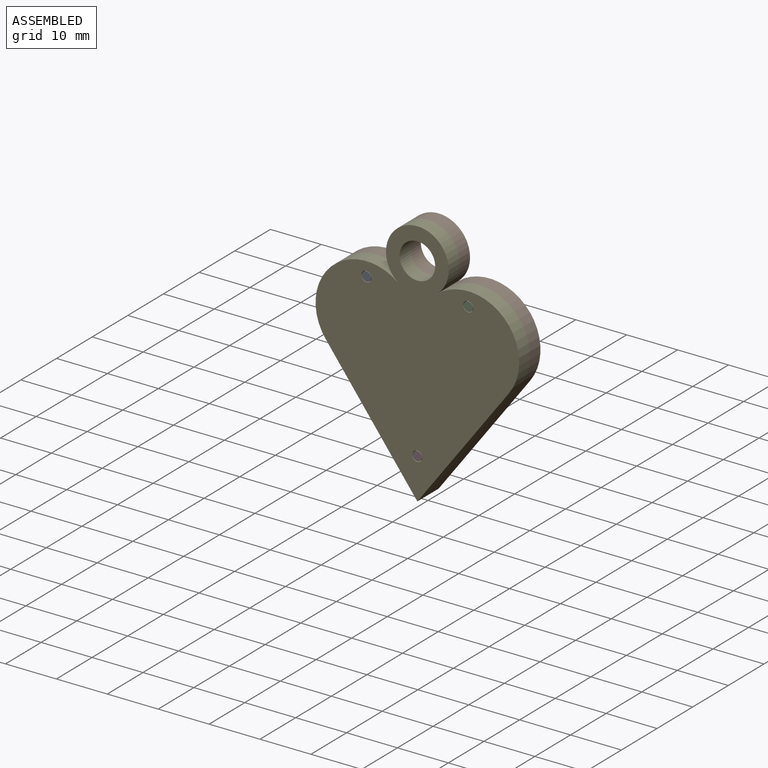
[diagram: assembled view]
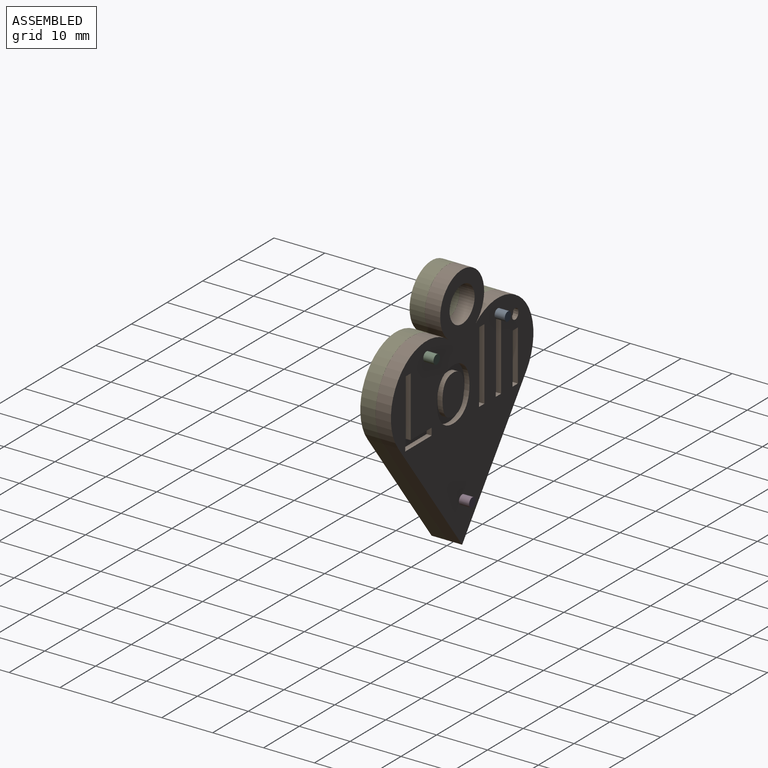
[diagram: assembled view, second angle]
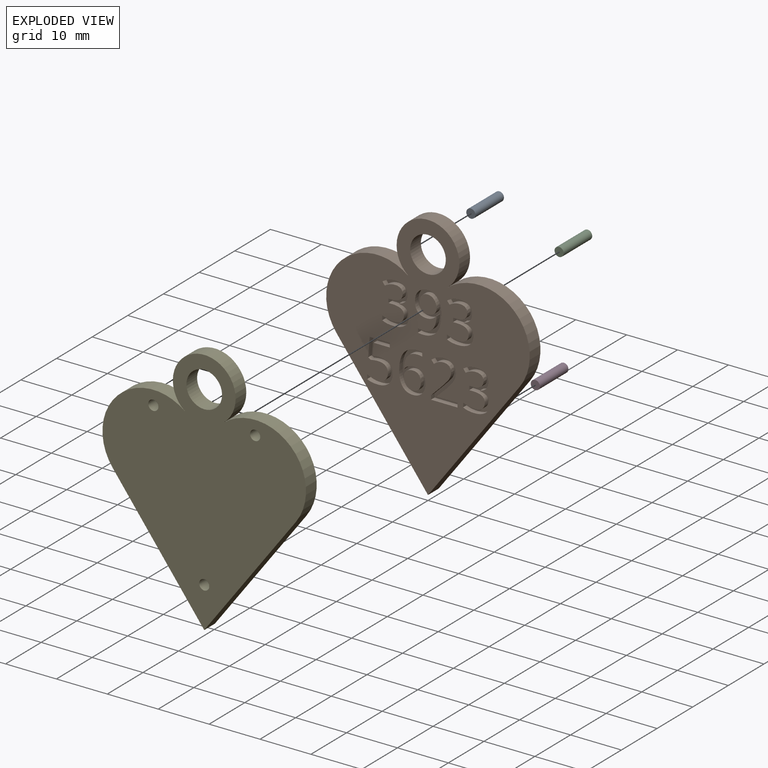
[diagram: exploded view]
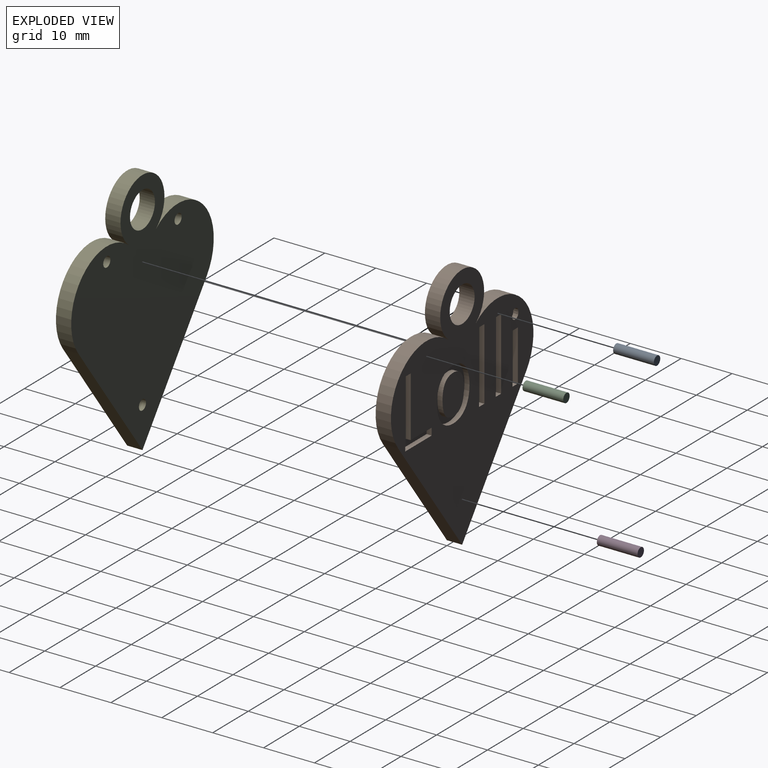
[diagram: exploded view, second angle]
ASSEMBLY  parts=5 mates=4
PART A: 3 faces, bbox 1.8x8x1.8 mm
  f0: cylinder r=0.9mm len=8mm, axis (0,1,0), area 45.2mm2, adj f1,f2
  f1: plane 1.8x1.8mm, normal (0,-1,0), area 2.5mm2, adj f0
  f2: plane 1.8x1.8mm, normal (0,1,0), area 2.5mm2, adj f0
PART B: 241 faces, bbox 40x3x48.9 mm
  f0: plane 48.87x40mm, normal (0,1,0), area 946.5mm2, adj f2,f3,f4,f5,f6,f7,f58,f59
  f1: plane 48.87x40mm, normal (0,-1,0), area 904.5mm2, adj f2,f3,f4,f5,f6,f7,f15,f16
  f2: plane 24x18mm, normal (0.8,0,-0.6), area 90mm2, adj f0,f1,f3,f6
  f3: cylinder r=10mm len=16.19mm, axis (0,1,0), area 86.4mm2, adj f0,f1,f2,f4
  f4: cylinder r=6.17mm len=12.33mm, axis (0,1,0), area 91.6mm2, adj f0,f1,f3,f5
  f5: cylinder r=10mm len=16.19mm, axis (0,1,0), area 86.4mm2, adj f0,f1,f4,f6
  f6: plane 24x18mm, normal (-0.8,0,-0.6), area 90mm2, adj f0,f1,f2,f5
  f7: cylinder r=3.5mm len=7mm, axis (0,1,0), area 66mm2, adj f0,f1
  f8: extruded ~2.91x1mm, area 3.1mm2, adj f9,f24,f25,f57
  f9: extruded ~2.9x1mm, area 3mm2, adj f8,f10,f25,f57
  f10: extruded ~2.23x1mm, area 2.5mm2, adj f9,f11,f25,f57
  f11: extruded ~2.27x1mm, area 2.6mm2, adj f10,f12,f25,f57
  f12: extruded ~2.88x1mm, area 3mm2, adj f11,f13,f25,f57
  f13: extruded ~2.91x1mm, area 3.1mm2, adj f12,f14,f25,f57
  f14: extruded ~2.25x1mm, area 2.6mm2, adj f13,f24,f25,f57
  f15: extruded ~3.8x1.23mm, area 4.1mm2, adj f1,f16,f23,f25
  f16: extruded ~3.76x1.23mm, area 4mm2, adj f1,f15,f17,f25
  f17: extruded ~3.32x1.39mm, area 3.7mm2, adj f1,f16,f18,f25
  f18: extruded ~3.38x1.36mm, area 3.8mm2, adj f1,f17,f19,f25
  f19: extruded ~3.79x1.22mm, area 4.1mm2, adj f1,f18,f20,f25
  f20: extruded ~2.74x1mm, area 2.8mm2, adj f1,f19,f21,f25
  f21: extruded ~1.8x1.6mm, area 2.4mm2, adj f1,f20,f22,f25
  f22: extruded ~2.37x1mm, area 2.5mm2, adj f1,f21,f23,f25
  f23: extruded ~3.39x1.37mm, area 3.8mm2, adj f1,f15,f22,f25
  f24: extruded ~2.24x1mm, area 2.6mm2, adj f8,f14,f25,f57
  f25: plane 10.32x9.15mm, normal (0,-1,0), area 38.1mm2, adj f8,f9,f10,f11,f12,f13,f14,f15
  f26: plane 1.51x1mm, normal (0,0,1), area 1.5mm2, adj f1,f27,f29,f30
  f27: plane 14.14x1mm, normal (-1,0,0), area 14.1mm2, adj f1,f26,f28,f30
  f28: plane 1.51x1mm, normal (0,0,-1), area 1.5mm2, adj f1,f27,f29,f30
  f29: plane 14.14x1mm, normal (1,0,0), area 14.1mm2, adj f1,f26,f28,f30
  f30: plane 14.14x1.51mm, normal (0,-1,0), area 21.3mm2, adj f26,f27,f28,f29
  f31: plane 13.28x1mm, normal (1,0,0), area 13.3mm2, adj f1,f32,f36,f37
  f32: plane 7.4x1mm, normal (0,0,1), area 7.4mm2, adj f1,f31,f33,f37
  f33: plane 1.4x1mm, normal (-1,0,0), area 1.4mm2, adj f1,f32,f34,f37
  f34: plane 5.86x1mm, normal (0,0,-1), area 5.9mm2, adj f1,f33,f35,f37
  f35: plane 11.88x1mm, normal (-1,0,0), area 11.9mm2, adj f1,f34,f36,f37
  f36: plane 1.54x1mm, normal (0,0,-1), area 1.5mm2, adj f1,f31,f35,f37
  f37: plane 13.28x7.4mm, normal (0,-1,0), area 28.7mm2, adj f31,f32,f33,f34,f35,f36
  f38: extruded ~1x0.76mm, area 0.8mm2, adj f1,f39,f45,f46
  f39: extruded ~1x0.76mm, area 0.8mm2, adj f1,f38,f40,f46
  f40: extruded ~1x0.64mm, area 0.7mm2, adj f1,f39,f41,f46
  f41: extruded ~1x0.63mm, area 0.7mm2, adj f1,f40,f42,f46
  f42: extruded ~1x0.76mm, area 0.8mm2, adj f1,f41,f43,f46
  f43: extruded ~1x0.75mm, area 0.8mm2, adj f1,f42,f44,f46
  f44: extruded ~1x0.63mm, area 0.7mm2, adj f1,f43,f45,f46
  f45: extruded ~1x0.64mm, area 0.7mm2, adj f1,f38,f44,f46
  f46: plane 2.01x1.78mm, normal (0,-1,0), area 2.9mm2, adj f38,f39,f40,f41,f42,f43,f44,f45
  f47: plane 1.51x1mm, normal (0,0,1), area 1.5mm2, adj f1,f48,f50,f51
  f48: plane 14.14x1mm, normal (-1,0,0), area 14.1mm2, adj f1,f47,f49,f51
  f49: plane 1.51x1mm, normal (0,0,-1), area 1.5mm2, adj f1,f48,f50,f51
  f50: plane 14.14x1mm, normal (1,0,0), area 14.1mm2, adj f1,f47,f49,f51
  f51: plane 14.14x1.51mm, normal (0,-1,0), area 21.3mm2, adj f47,f48,f49,f50
  f52: plane 1.51x1mm, normal (0,0,1), area 1.5mm2, adj f1,f53,f55,f56
  f53: plane 9.96x1mm, normal (-1,0,0), area 10mm2, adj f1,f52,f54,f56
  f54: plane 1.51x1mm, normal (0,0,-1), area 1.5mm2, adj f1,f53,f55,f56
  f55: plane 9.96x1mm, normal (1,0,0), area 10mm2, adj f1,f52,f54,f56
  f56: plane 9.96x1.51mm, normal (0,-1,0), area 15mm2, adj f52,f53,f54,f55
  f57: plane 7.78x6.02mm, normal (0,-1,0), area 38.9mm2, adj f8,f9,f10,f11,f12,f13,f14,f24
  f58: extruded ~1.24x1mm, area 1.3mm2, adj f0,f59,f85,f86
  f59: extruded ~1.45x1mm, area 1.6mm2, adj f0,f58,f60,f86
  f60: extruded ~1.8x1mm, area 1.9mm2, adj f0,f59,f61,f86
  f61: extruded ~1.34x1mm, area 1.4mm2, adj f0,f60,f62,f86
  f62: extruded ~1.13x1mm, area 1.3mm2, adj f0,f61,f63,f86
  f63: plane 1x0.61mm, normal (-0.8,0,0.6), area 0.8mm2, adj f0,f62,f64,f86
  f64: extruded ~1.05x1mm, area 1.2mm2, adj f0,f63,f65,f86
  f65: extruded ~1x0.98mm, area 1mm2, adj f0,f64,f66,f86
  f66: extruded ~1.08x1mm, area 1.2mm2, adj f0,f65,f67,f86
  f67: extruded ~1x0.91mm, area 1mm2, adj f0,f66,f68,f86
  f68: extruded ~1.14x1mm, area 1.3mm2, adj f0,f67,f69,f86
  f69: extruded ~1.47x1mm, area 1.6mm2, adj f0,f68,f70,f86
  f70: plane 1x0.79mm, normal (0,0,-1), area 0.8mm2, adj f0,f69,f71,f86
  f71: plane 1x0.77mm, normal (-1,0,0), area 0.8mm2, adj f0,f70,f72,f86
  f72: plane 1x0.78mm, normal (0,0,1), area 0.8mm2, adj f0,f71,f73,f86
  f73: extruded ~2.27x1.44mm, area 3mm2, adj f0,f72,f74,f86
  f74: extruded ~2.06x1.61mm, area 3mm2, adj f0,f73,f75,f86
  f75: extruded ~1.1x1mm, area 1.1mm2, adj f0,f74,f76,f86
  f76: extruded ~1.1x1mm, area 1.2mm2, adj f0,f75,f77,f86
  f77: plane 1x0.86mm, normal (-1,0,0), area 0.9mm2, adj f0,f76,f78,f86
  f78: extruded ~1.02x1mm, area 1.1mm2, adj f0,f77,f79,f86
  f79: extruded ~1.15x1mm, area 1.2mm2, adj f0,f78,f80,f86
  f80: extruded ~2.23x1mm, area 2.4mm2, adj f0,f79,f81,f86
  f81: extruded ~1.74x1mm, area 2mm2, adj f0,f80,f82,f86
  f82: extruded ~1.28x1mm, area 1.4mm2, adj f0,f81,f83,f86
  f83: extruded ~1.42x1mm, area 1.6mm2, adj f0,f82,f84,f86
  f84: plane 1x0.04mm, normal (1,0,0), area 0mm2, adj f0,f83,f85,f86
  f85: extruded ~1.21x1mm, area 1.4mm2, adj f0,f58,f84,f86
  f86: plane 8.15x5.19mm, normal (0,1,0), area 14.6mm2, adj f58,f59,f60,f61,f62,f63,f64,f65
  f87: extruded ~1.24x1mm, area 1.3mm2, adj f0,f88,f114,f115
  f88: extruded ~1.45x1mm, area 1.6mm2, adj f0,f87,f89,f115
  f89: extruded ~1.8x1mm, area 1.9mm2, adj f0,f88,f90,f115
  f90: extruded ~1.34x1mm, area 1.4mm2, adj f0,f89,f91,f115
  f91: extruded ~1.13x1mm, area 1.3mm2, adj f0,f90,f92,f115
  f92: plane 1x0.61mm, normal (-0.8,0,0.6), area 0.8mm2, adj f0,f91,f93,f115
  f93: extruded ~1.05x1mm, area 1.2mm2, adj f0,f92,f94,f115
  f94: extruded ~1x0.98mm, area 1mm2, adj f0,f93,f95,f115
  f95: extruded ~1.08x1mm, area 1.2mm2, adj f0,f94,f96,f115
  f96: extruded ~1x0.91mm, area 1mm2, adj f0,f95,f97,f115
  f97: extruded ~1.14x1mm, area 1.3mm2, adj f0,f96,f98,f115
  f98: extruded ~1.47x1mm, area 1.6mm2, adj f0,f97,f99,f115
  f99: plane 1x0.79mm, normal (0,0,-1), area 0.8mm2, adj f0,f98,f100,f115
  f100: plane 1x0.77mm, normal (-1,0,0), area 0.8mm2, adj f0,f99,f101,f115
  f101: plane 1x0.78mm, normal (0,0,1), area 0.8mm2, adj f0,f100,f102,f115
  f102: extruded ~2.27x1.44mm, area 3mm2, adj f0,f101,f103,f115
  f103: extruded ~2.06x1.61mm, area 3mm2, adj f0,f102,f104,f115
  f104: extruded ~1.1x1mm, area 1.1mm2, adj f0,f103,f105,f115
  f105: extruded ~1.1x1mm, area 1.2mm2, adj f0,f104,f106,f115
  f106: plane 1x0.86mm, normal (-1,0,0), area 0.9mm2, adj f0,f105,f107,f115
  f107: extruded ~1.02x1mm, area 1.1mm2, adj f0,f106,f108,f115
  f108: extruded ~1.15x1mm, area 1.2mm2, adj f0,f107,f109,f115
  f109: extruded ~2.23x1mm, area 2.4mm2, adj f0,f108,f110,f115
  f110: extruded ~1.74x1mm, area 2mm2, adj f0,f109,f111,f115
  f111: extruded ~1.28x1mm, area 1.4mm2, adj f0,f110,f112,f115
  f112: extruded ~1.42x1mm, area 1.6mm2, adj f0,f111,f113,f115
  f113: plane 1x0.04mm, normal (1,0,0), area 0mm2, adj f0,f112,f114,f115
  f114: extruded ~1.21x1mm, area 1.4mm2, adj f0,f87,f113,f115
  f115: plane 8.15x5.19mm, normal (0,1,0), area 14.6mm2, adj f87,f88,f89,f90,f91,f92,f93,f94
  f116: plane 5.21x1mm, normal (0,0,1), area 5.2mm2, adj f0,f117,f135,f136
  f117: plane 1x0.84mm, normal (1,0,0), area 0.8mm2, adj f0,f116,f118,f136
  f118: plane 4.08x1mm, normal (0,0,-1), area 4.1mm2, adj f0,f117,f119,f136
  f119: plane 1x0.04mm, normal (1,0,0), area 0mm2, adj f0,f118,f120,f136
  f120: plane 1.74x1.7mm, normal (0.7,0,0.71), area 2.4mm2, adj f0,f119,f121,f136
  f121: extruded ~1.87x1.58mm, area 2.5mm2, adj f0,f120,f122,f136
  f122: extruded ~1.49x1mm, area 1.6mm2, adj f0,f121,f123,f136
  f123: extruded ~1.54x1mm, area 1.7mm2, adj f0,f122,f124,f136
  f124: extruded ~1.75x1mm, area 1.9mm2, adj f0,f123,f125,f136
  f125: extruded ~2.39x1mm, area 2.6mm2, adj f0,f124,f126,f136
  f126: plane 1x0.61mm, normal (-0.79,0,0.61), area 0.8mm2, adj f0,f125,f127,f136
  f127: extruded ~1x0.98mm, area 1.2mm2, adj f0,f126,f128,f136
  f128: extruded ~1x0.94mm, area 1mm2, adj f0,f127,f129,f136
  f129: extruded ~1.07x1mm, area 1.2mm2, adj f0,f128,f130,f136
  f130: extruded ~1.01x1mm, area 1.1mm2, adj f0,f129,f131,f136
  f131: extruded ~1x0.84mm, area 0.9mm2, adj f0,f130,f132,f136
  f132: extruded ~1x0.8mm, area 0.9mm2, adj f0,f131,f133,f136
  f133: extruded ~1.38x1.26mm, area 1.9mm2, adj f0,f132,f134,f136
  f134: plane 2.1x2.09mm, normal (-0.71,0,-0.71), area 3mm2, adj f0,f133,f135,f136
  f135: plane 1x0.78mm, normal (-1,0,0), area 0.8mm2, adj f0,f116,f134,f136
  f136: plane 8.05x5.21mm, normal (0,1,0), area 13.9mm2, adj f116,f117,f118,f119,f120,f121,f122,f123
  f137: extruded ~1.2x1mm, area 1.3mm2, adj f138,f161,f162,f239
  f138: extruded ~1x0.91mm, area 1mm2, adj f137,f139,f162,f239
  f139: extruded ~1x0.76mm, area 1mm2, adj f138,f140,f162,f239
  f140: extruded ~1.04x1mm, area 1.1mm2, adj f139,f141,f162,f239
  f141: extruded ~1x0.73mm, area 0.8mm2, adj f140,f142,f162,f239
  f142: extruded ~1x0.65mm, area 0.9mm2, adj f141,f143,f162,f239
  f143: extruded ~1x0.9mm, area 0.9mm2, adj f142,f144,f162,f239
  f144: extruded ~1.18x1mm, area 1.3mm2, adj f143,f145,f162,f239
  f145: extruded ~1.24x1mm, area 1.3mm2, adj f144,f161,f162,f239
  f146: extruded ~3.5x1mm, area 3.7mm2, adj f0,f147,f160,f162
  f147: extruded ~2.57x1mm, area 2.7mm2, adj f0,f146,f148,f162
  f148: extruded ~1.95x1mm, area 2.2mm2, adj f0,f147,f149,f162
  f149: extruded ~1.83x1mm, area 2mm2, adj f0,f148,f150,f162
  f150: extruded ~1.95x1mm, area 2.1mm2, adj f0,f149,f151,f162
  f151: extruded ~1.75x1mm, area 1.9mm2, adj f0,f150,f152,f162
  f152: extruded ~1.69x1mm, area 1.9mm2, adj f0,f151,f153,f162
  f153: extruded ~1.89x1mm, area 2.2mm2, adj f0,f152,f154,f162
  f154: plane 1x0.06mm, normal (0,0,-1), area 0.1mm2, adj f0,f153,f155,f162
  f155: extruded ~2.5x1mm, area 2.7mm2, adj f0,f154,f156,f162
  f156: extruded ~1.95x1mm, area 2.2mm2, adj f0,f155,f157,f162
  f157: extruded ~1x0.96mm, area 1mm2, adj f0,f156,f158,f162
  f158: plane 1x0.78mm, normal (1,0,0), area 0.8mm2, adj f0,f157,f159,f162
  f159: extruded ~1x0.97mm, area 1mm2, adj f0,f158,f160,f162
  f160: extruded ~2.69x1.16mm, area 3mm2, adj f0,f146,f159,f162
  f161: extruded ~1.4x1mm, area 1.5mm2, adj f137,f145,f162,f239
  f162: plane 8.15x5.18mm, normal (0,1,0), area 16.3mm2, adj f137,f138,f139,f140,f141,f142,f143,f144
  f163: extruded ~1.2x1mm, area 1.3mm2, adj f164,f188,f189,f240
  f164: extruded ~1x0.91mm, area 1mm2, adj f163,f165,f189,f240
  f165: extruded ~1x0.76mm, area 1mm2, adj f164,f166,f189,f240
  f166: extruded ~1.05x1mm, area 1.1mm2, adj f165,f167,f189,f240
  f167: extruded ~1x0.73mm, area 0.8mm2, adj f166,f168,f189,f240
  f168: extruded ~1x0.65mm, area 0.9mm2, adj f167,f169,f189,f240
  f169: extruded ~1x0.91mm, area 0.9mm2, adj f168,f170,f189,f240
  f170: extruded ~1.19x1mm, area 1.3mm2, adj f169,f171,f189,f240
  f171: extruded ~1.23x1mm, area 1.3mm2, adj f170,f188,f189,f240
  f172: extruded ~4.66x3.6mm, area 6.7mm2, adj f0,f173,f187,f189
  f173: extruded ~1.87x1mm, area 1.9mm2, adj f0,f172,f174,f189
  f174: extruded ~1.21x1mm, area 1.5mm2, adj f0,f173,f175,f189
  f175: extruded ~1.41x1mm, area 1.5mm2, adj f0,f174,f176,f189
  f176: extruded ~1.82x1mm, area 2mm2, adj f0,f175,f177,f189
  f177: extruded ~1.95x1mm, area 2.1mm2, adj f0,f176,f178,f189
  f178: extruded ~1.76x1mm, area 1.9mm2, adj f0,f177,f179,f189
  f179: extruded ~1.67x1mm, area 1.8mm2, adj f0,f178,f180,f189
  f180: extruded ~1.11x1mm, area 1.1mm2, adj f0,f179,f181,f189
  f181: extruded ~1x0.79mm, area 1.1mm2, adj f0,f180,f182,f189
  f182: plane 1x0.06mm, normal (0,0,1), area 0.1mm2, adj f0,f181,f183,f189
  f183: extruded ~2.47x1mm, area 2.6mm2, adj f0,f182,f184,f189
  f184: extruded ~1.97x1mm, area 2.2mm2, adj f0,f183,f185,f189
  f185: extruded ~1x0.99mm, area 1mm2, adj f0,f184,f186,f189
  f186: plane 1x0.78mm, normal (-1,0,0), area 0.8mm2, adj f0,f185,f187,f189
  f187: extruded ~1x1mm, area 1mm2, adj f0,f172,f186,f189
  f188: extruded ~1.39x1mm, area 1.5mm2, adj f163,f171,f189,f240
  f189: plane 8.15x5.18mm, normal (0,1,0), area 16.3mm2, adj f163,f164,f165,f166,f167,f168,f169,f170
  f190: extruded ~1.24x1mm, area 1.3mm2, adj f0,f191,f217,f218
  f191: extruded ~1.45x1mm, area 1.6mm2, adj f0,f190,f192,f218
  f192: extruded ~1.8x1mm, area 1.9mm2, adj f0,f191,f193,f218
  f193: extruded ~1.34x1mm, area 1.4mm2, adj f0,f192,f194,f218
  f194: extruded ~1.13x1mm, area 1.3mm2, adj f0,f193,f195,f218
  f195: plane 1x0.61mm, normal (-0.8,0,0.6), area 0.8mm2, adj f0,f194,f196,f218
  f196: extruded ~1.05x1mm, area 1.2mm2, adj f0,f195,f197,f218
  f197: extruded ~1x0.98mm, area 1mm2, adj f0,f196,f198,f218
  f198: extruded ~1.08x1mm, area 1.2mm2, adj f0,f197,f199,f218
  f199: extruded ~1x0.91mm, area 1mm2, adj f0,f198,f200,f218
  f200: extruded ~1.14x1mm, area 1.3mm2, adj f0,f199,f201,f218
  f201: extruded ~1.47x1mm, area 1.6mm2, adj f0,f200,f202,f218
  f202: plane 1x0.79mm, normal (0,0,-1), area 0.8mm2, adj f0,f201,f203,f218
  f203: plane 1x0.77mm, normal (-1,0,0), area 0.8mm2, adj f0,f202,f204,f218
  f204: plane 1x0.78mm, normal (0,0,1), area 0.8mm2, adj f0,f203,f205,f218
  f205: extruded ~2.27x1.44mm, area 3mm2, adj f0,f204,f206,f218
  f206: extruded ~2.06x1.61mm, area 3mm2, adj f0,f205,f207,f218
  f207: extruded ~1.1x1mm, area 1.1mm2, adj f0,f206,f208,f218
  f208: extruded ~1.1x1mm, area 1.2mm2, adj f0,f207,f209,f218
  f209: plane 1x0.86mm, normal (-1,0,0), area 0.9mm2, adj f0,f208,f210,f218
  f210: extruded ~1.02x1mm, area 1.1mm2, adj f0,f209,f211,f218
  f211: extruded ~1.15x1mm, area 1.2mm2, adj f0,f210,f212,f218
  f212: extruded ~2.23x1mm, area 2.4mm2, adj f0,f211,f213,f218
  f213: extruded ~1.74x1mm, area 2mm2, adj f0,f212,f214,f218
  f214: extruded ~1.28x1mm, area 1.4mm2, adj f0,f213,f215,f218
  f215: extruded ~1.42x1mm, area 1.6mm2, adj f0,f214,f216,f218
  f216: plane 1x0.04mm, normal (1,0,0), area 0mm2, adj f0,f215,f217,f218
  f217: extruded ~1.21x1mm, area 1.4mm2, adj f0,f190,f216,f218
  f218: plane 8.15x5.19mm, normal (0,1,0), area 14.6mm2, adj f190,f191,f192,f193,f194,f195,f196,f197
  f219: extruded ~1.97x1mm, area 2.1mm2, adj f0,f220,f237,f238
  f220: extruded ~1.24x1mm, area 1.3mm2, adj f0,f219,f221,f238
  f221: plane 2.38x1mm, normal (1,0,0.08), area 2.4mm2, adj f0,f220,f222,f238
  f222: plane 3.17x1mm, normal (0,0,1), area 3.2mm2, adj f0,f221,f223,f238
  f223: plane 1x0.83mm, normal (1,0,0), area 0.8mm2, adj f0,f222,f224,f238
  f224: plane 3.94x1mm, normal (0,0,-1), area 3.9mm2, adj f0,f223,f225,f238
  f225: plane 3.71x1mm, normal (-1,0,-0.08), area 3.7mm2, adj f0,f224,f226,f238
  f226: plane 1x0.47mm, normal (-0.54,0,0.84), area 0.6mm2, adj f0,f225,f227,f238
  f227: extruded ~1.38x1mm, area 1.4mm2, adj f0,f226,f228,f238
  f228: extruded ~2.03x1.66mm, area 3mm2, adj f0,f227,f229,f238
  f229: extruded ~1.3x1mm, area 1.5mm2, adj f0,f228,f230,f238
  f230: extruded ~1.48x1mm, area 1.6mm2, adj f0,f229,f231,f238
  f231: extruded ~1.11x1mm, area 1.1mm2, adj f0,f230,f232,f238
  f232: extruded ~1x0.94mm, area 1mm2, adj f0,f231,f233,f238
  f233: plane 1x0.87mm, normal (-1,0,0), area 0.9mm2, adj f0,f232,f234,f238
  f234: extruded ~2.05x1mm, area 2.1mm2, adj f0,f233,f235,f238
  f235: extruded ~2.16x1mm, area 2.3mm2, adj f0,f234,f236,f238
  f236: extruded ~1.93x1mm, area 2.2mm2, adj f0,f235,f237,f238
  f237: extruded ~1.7x1mm, area 1.9mm2, adj f0,f219,f236,f238
  f238: plane 8.04x4.99mm, normal (0,1,0), area 14.6mm2, adj f219,f220,f221,f222,f223,f224,f225,f226
  f239: plane 3.58x3.36mm, normal (0,1,0), area 9.7mm2, adj f137,f138,f139,f140,f141,f142,f143,f144
  f240: plane 3.56x3.38mm, normal (0,1,0), area 9.7mm2, adj f163,f164,f165,f166,f167,f168,f169,f170
PART C: 3 faces, bbox 1.8x8x1.8 mm
  f0: cylinder r=0.9mm len=8mm, axis (0,1,0), area 45.2mm2, adj f1,f2
  f1: plane 1.8x1.8mm, normal (0,-1,0), area 2.5mm2, adj f0
  f2: plane 1.8x1.8mm, normal (0,1,0), area 2.5mm2, adj f0
PART D: 3 faces, bbox 1.8x8x1.8 mm
  f0: cylinder r=0.9mm len=8mm, axis (0,1,0), area 45.2mm2, adj f1,f2
  f1: plane 1.8x1.8mm, normal (0,-1,0), area 2.5mm2, adj f0
  f2: plane 1.8x1.8mm, normal (0,1,0), area 2.5mm2, adj f0
PART E: 11 faces, bbox 40x3x48.9 mm
  f0: cylinder r=10mm len=16.19mm, axis (0,1,0), area 86.4mm2, adj f1,f6,f9,f10
  f1: plane 24x18mm, normal (-0.8,0,-0.6), area 90mm2, adj f0,f2,f9,f10
  f2: plane 24x18mm, normal (0.8,0,-0.6), area 90mm2, adj f1,f3,f9,f10
  f3: cylinder r=10mm len=16.19mm, axis (0,1,0), area 86.4mm2, adj f2,f6,f9,f10
  f4: cylinder r=1mm len=3mm, axis (0,1,0), area 18.8mm2, adj f9,f10
  f5: cylinder r=1mm len=3mm, axis (0,1,0), area 18.8mm2, adj f9,f10
  f6: cylinder r=6.17mm len=12.33mm, axis (0,1,0), area 91.6mm2, adj f0,f3,f9,f10
  f7: cylinder r=1mm len=3mm, axis (0,1,0), area 18.8mm2, adj f9,f10
  f8: cylinder r=3.5mm len=7mm, axis (0,1,0), area 66mm2, adj f9,f10
  f9: plane 48.87x40mm, normal (0,-1,0), area 1061.4mm2, adj f0,f1,f2,f3,f4,f5,f6,f7
  f10: plane 48.87x40mm, normal (0,1,0), area 1061.4mm2, adj f0,f1,f2,f3,f4,f5,f6,f7
PLACE A t=(0,5,0)mm
PLACE B rot(axis=(0,0,1),180deg) t=(-0.01,0,-36.91)mm
PLACE C t=(0,5,0)mm
PLACE D t=(0,5,0)mm
PLACE E at identity
MATE fastened A.f0 <-> E.f7  axis (0,-1,0) through (-10,-3,7.57)mm
MATE fastened D.f0 <-> E.f5  axis (0,-1,0) through (0,-3,-21.65)mm
MATE fastened B.f0 <-> E.f10  axis (0,-1,0) through (0,0,-3.72)mm
MATE fastened C.f0 <-> E.f4  axis (0,-1,0) through (10,-3,7.57)mm
